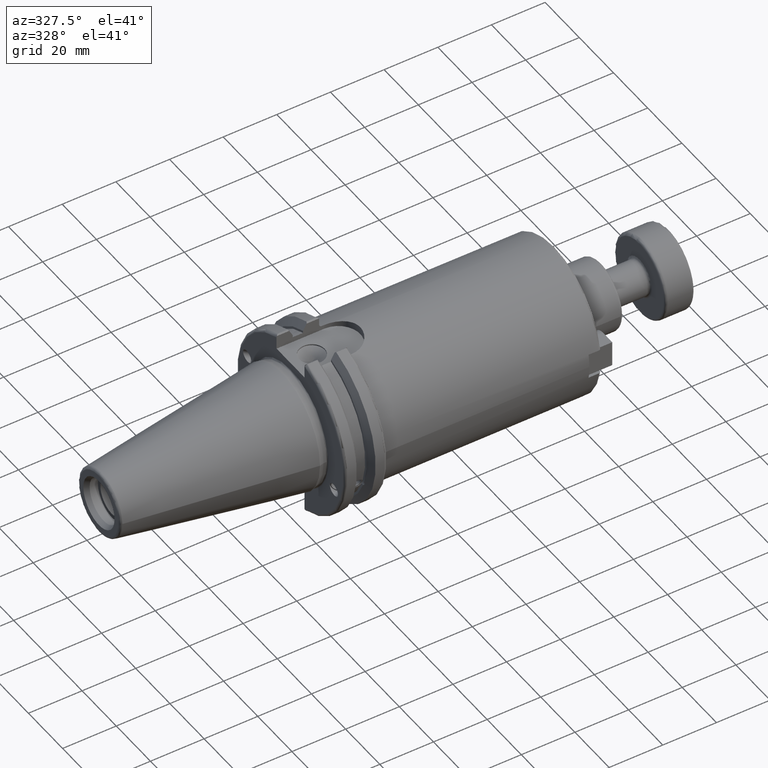
[diagram: clean part render]
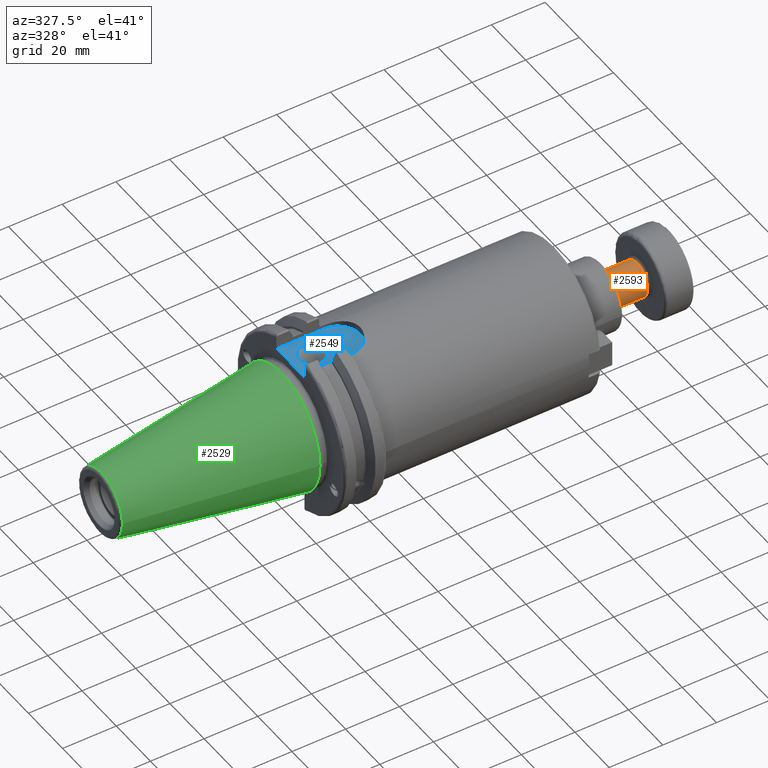
[diagram: same view with three faces highlighted in distinct colors, each labeled with its STEP entity id]
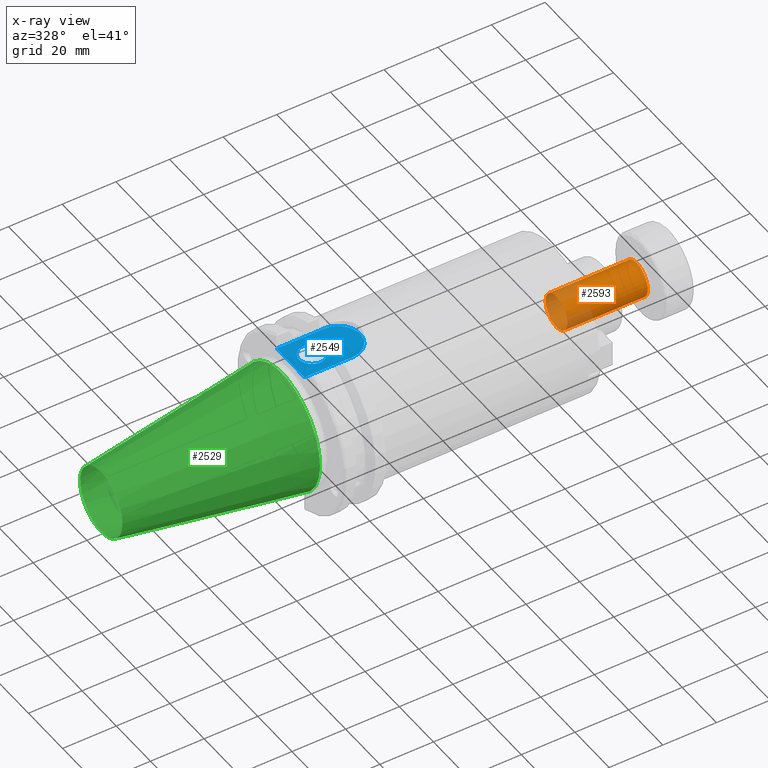
[diagram: x-ray of the same camera — body ghosted, the three highlighted faces saturated]
A machine part, auxiliary view with three faces highlighted in distinct colors.
The next image is the same camera in x-ray (body ghosted, the three faces saturated) — at least one of them is partly hidden behind the body in this view.
Their STEP definitions:

[orange] entity #2593 — the highlighted cylindrical surface (bore or boss wall) has radius 6.35 mm, axis along (-1, -0, 0).
#151=CYLINDRICAL_SURFACE('',#2982,6.35);
#311=CIRCLE('',#2980,6.35);
#312=CIRCLE('',#2981,6.35);
#313=CIRCLE('',#2983,6.35);
#314=CIRCLE('',#2984,6.35);
#464=FACE_OUTER_BOUND('',#633,.T.);
#633=EDGE_LOOP('',(#2347,#2348,#2349,#2350,#2351,#2352));
#805=LINE('',#4954,#969);
#969=VECTOR('',#3732,6.35);
#1248=VERTEX_POINT('',#4947);
#1249=VERTEX_POINT('',#4949);
#1250=VERTEX_POINT('',#4953);
#1251=VERTEX_POINT('',#4955);
#1618=EDGE_CURVE('',#1248,#1249,#311,.T.);
#1619=EDGE_CURVE('',#1249,#1248,#312,.T.);
#1620=EDGE_CURVE('',#1249,#1250,#805,.T.);
#1621=EDGE_CURVE('',#1251,#1250,#313,.T.);
#1622=EDGE_CURVE('',#1250,#1251,#314,.T.);
#2347=ORIENTED_EDGE('',*,*,#1618,.F.);
#2348=ORIENTED_EDGE('',*,*,#1619,.F.);
#2349=ORIENTED_EDGE('',*,*,#1620,.T.);
#2350=ORIENTED_EDGE('',*,*,#1621,.F.);
#2351=ORIENTED_EDGE('',*,*,#1622,.F.);
#2352=ORIENTED_EDGE('',*,*,#1620,.F.);
#2593=ADVANCED_FACE('',(#464),#151,.T.);
#2980=AXIS2_PLACEMENT_3D('',#4950,#3726,#3727);
#2981=AXIS2_PLACEMENT_3D('',#4951,#3728,#3729);
#2982=AXIS2_PLACEMENT_3D('',#4952,#3730,#3731);
#2983=AXIS2_PLACEMENT_3D('',#4956,#3733,#3734);
#2984=AXIS2_PLACEMENT_3D('',#4957,#3735,#3736);
#3726=DIRECTION('center_axis',(1.,0.,0.));
#3727=DIRECTION('ref_axis',(0.,-1.,0.));
#3728=DIRECTION('center_axis',(1.,0.,0.));
#3729=DIRECTION('ref_axis',(0.,-1.,0.));
#3730=DIRECTION('center_axis',(1.,0.,0.));
#3731=DIRECTION('ref_axis',(0.,1.,0.));
#3732=DIRECTION('',(-1.,0.,0.));
#3733=DIRECTION('center_axis',(-1.,0.,0.));
#3734=DIRECTION('ref_axis',(0.,-1.,1.83697019872103E-16));
#3735=DIRECTION('center_axis',(-1.,0.,0.));
#3736=DIRECTION('ref_axis',(0.,-1.,1.83697019872103E-16));
#4947=CARTESIAN_POINT('',(42.,6.35,7.7765071745857E-16));
#4949=CARTESIAN_POINT('',(42.,-6.35,-7.7765071745857E-16));
#4950=CARTESIAN_POINT('Origin',(42.,0.,0.));
#4951=CARTESIAN_POINT('Origin',(42.,0.,0.));
#4952=CARTESIAN_POINT('Origin',(27.,0.,0.));
#4953=CARTESIAN_POINT('',(12.,-6.35,-7.7765071745857E-16));
#4954=CARTESIAN_POINT('',(27.,-6.35,-7.7765071745857E-16));
#4955=CARTESIAN_POINT('',(12.,-7.7765071745857E-16,6.35));
#4956=CARTESIAN_POINT('Origin',(12.,0.,0.));
#4957=CARTESIAN_POINT('Origin',(12.,0.,0.));

[blue] entity #2549 — the highlighted planar face has unit normal (0, 0, 1).
#186=FACE_BOUND('',#583,.T.);
#227=CIRCLE('',#2762,8.19000000000001);
#275=CIRCLE('',#2889,4.7625);
#420=FACE_OUTER_BOUND('',#582,.T.);
#582=EDGE_LOOP('',(#2155,#2156,#2157,#2158));
#583=EDGE_LOOP('',(#2159));
#713=LINE('',#4464,#877);
#725=LINE('',#4568,#889);
#740=LINE('',#4693,#904);
#877=VECTOR('',#3368,10.);
#889=VECTOR('',#3400,10.);
#904=VECTOR('',#3457,10.);
#1067=VERTEX_POINT('',#4119);
#1068=VERTEX_POINT('',#4121);
#1144=VERTEX_POINT('',#4461);
#1145=VERTEX_POINT('',#4463);
#1187=VERTEX_POINT('',#4716);
#1337=EDGE_CURVE('',#1068,#1067,#227,.T.);
#1444=EDGE_CURVE('',#1144,#1145,#713,.T.);
#1470=EDGE_CURVE('',#1144,#1068,#725,.T.);
#1507=EDGE_CURVE('',#1067,#1145,#740,.T.);
#1516=EDGE_CURVE('',#1187,#1187,#275,.T.);
#2155=ORIENTED_EDGE('',*,*,#1444,.F.);
#2156=ORIENTED_EDGE('',*,*,#1470,.T.);
#2157=ORIENTED_EDGE('',*,*,#1337,.T.);
#2158=ORIENTED_EDGE('',*,*,#1507,.T.);
#2159=ORIENTED_EDGE('',*,*,#1516,.T.);
#2422=PLANE('',#2904);
#2549=ADVANCED_FACE('',(#420,#186),#2422,.T.);
#2762=AXIS2_PLACEMENT_3D('',#4122,#3160,#3161);
#2889=AXIS2_PLACEMENT_3D('',#4717,#3485,#3486);
#2904=AXIS2_PLACEMENT_3D('',#4733,#3516,#3517);
#3160=DIRECTION('center_axis',(0.,0.,1.));
#3161=DIRECTION('ref_axis',(1.08446693492078E-15,-1.,0.));
#3368=DIRECTION('',(0.,1.,0.));
#3400=DIRECTION('',(1.,-4.36359414507362E-16,0.));
#3457=DIRECTION('',(-1.,-1.87011177646012E-16,0.));
#3485=DIRECTION('center_axis',(0.,0.,-1.));
#3486=DIRECTION('ref_axis',(1.,0.,0.));
#3516=DIRECTION('center_axis',(0.,0.,1.));
#3517=DIRECTION('ref_axis',(1.,0.,0.));
#4119=CARTESIAN_POINT('',(20.985,8.19,25.));
#4121=CARTESIAN_POINT('',(20.985,-8.19000000000003,25.));
#4122=CARTESIAN_POINT('Origin',(20.985,1.58308003551686E-14,25.));
#4461=CARTESIAN_POINT('',(3.175,-8.19000000000002,25.));
#4463=CARTESIAN_POINT('',(3.175,8.19,25.));
#4464=CARTESIAN_POINT('',(3.175,15.875,25.));
#4568=CARTESIAN_POINT('',(3.175,-8.19000000000002,25.));
#4693=CARTESIAN_POINT('',(20.985,8.19,25.));
#4716=CARTESIAN_POINT('',(6.3716,-5.83238038093927E-16,25.));
#4717=CARTESIAN_POINT('Origin',(11.1341,0.,25.));
#4733=CARTESIAN_POINT('Origin',(15.7075,0.,25.));

[green] entity #2529 — the highlighted conical surface has half-angle 8.297 deg.
#161=CONICAL_SURFACE('',#2874,17.2484375,0.144812498238939);
#267=CIRCLE('',#2868,12.3966635780937);
#268=CIRCLE('',#2869,12.3966635780937);
#272=CIRCLE('',#2875,22.225);
#400=FACE_OUTER_BOUND('',#562,.T.);
#562=EDGE_LOOP('',(#2056,#2057,#2058,#2059,#2060));
#737=LINE('',#4684,#901);
#901=VECTOR('',#3450,17.2484375);
#1178=VERTEX_POINT('',#4671);
#1179=VERTEX_POINT('',#4672);
#1182=VERTEX_POINT('',#4682);
#1497=EDGE_CURVE('',#1178,#1179,#267,.T.);
#1498=EDGE_CURVE('',#1179,#1178,#268,.T.);
#1502=EDGE_CURVE('',#1182,#1182,#272,.T.);
#1503=EDGE_CURVE('',#1182,#1179,#737,.T.);
#2056=ORIENTED_EDGE('',*,*,#1502,.F.);
#2057=ORIENTED_EDGE('',*,*,#1503,.T.);
#2058=ORIENTED_EDGE('',*,*,#1497,.F.);
#2059=ORIENTED_EDGE('',*,*,#1498,.F.);
#2060=ORIENTED_EDGE('',*,*,#1503,.F.);
#2529=ADVANCED_FACE('',(#400),#161,.T.);
#2868=AXIS2_PLACEMENT_3D('',#4673,#3434,#3435);
#2869=AXIS2_PLACEMENT_3D('',#4674,#3436,#3437);
#2874=AXIS2_PLACEMENT_3D('',#4681,#3446,#3447);
#2875=AXIS2_PLACEMENT_3D('',#4683,#3448,#3449);
#3434=DIRECTION('center_axis',(-1.,0.,0.));
#3435=DIRECTION('ref_axis',(0.,-1.,3.06161699786838E-17));
#3436=DIRECTION('center_axis',(-1.,0.,0.));
#3437=DIRECTION('ref_axis',(0.,-1.,3.06161699786838E-17));
#3446=DIRECTION('center_axis',(1.,0.,0.));
#3447=DIRECTION('ref_axis',(0.,1.,0.));
#3448=DIRECTION('center_axis',(1.,0.,0.));
#3449=DIRECTION('ref_axis',(0.,0.,-1.));
#3450=DIRECTION('',(-0.989532981063282,0.144306893071729,1.76724974695192E-17));
#4671=CARTESIAN_POINT('',(-67.3943068930717,-1.5181534371019E-15,12.3966635780937));
#4672=CARTESIAN_POINT('',(-67.3943068930718,-12.3966635780937,-1.5181534371019E-15));
#4673=CARTESIAN_POINT('Origin',(-67.3943068930717,0.,-1.89769179637738E-15));
#4674=CARTESIAN_POINT('Origin',(-67.3943068930717,0.,-1.89769179637738E-15));
#4681=CARTESIAN_POINT('Origin',(-34.125,0.,0.));
#4682=CARTESIAN_POINT('',(0.,-22.225,-2.72177751110499E-15));
#4683=CARTESIAN_POINT('Origin',(0.,0.,0.));
#4684=CARTESIAN_POINT('',(-34.125,-17.2484375,-2.11232437746682E-15));